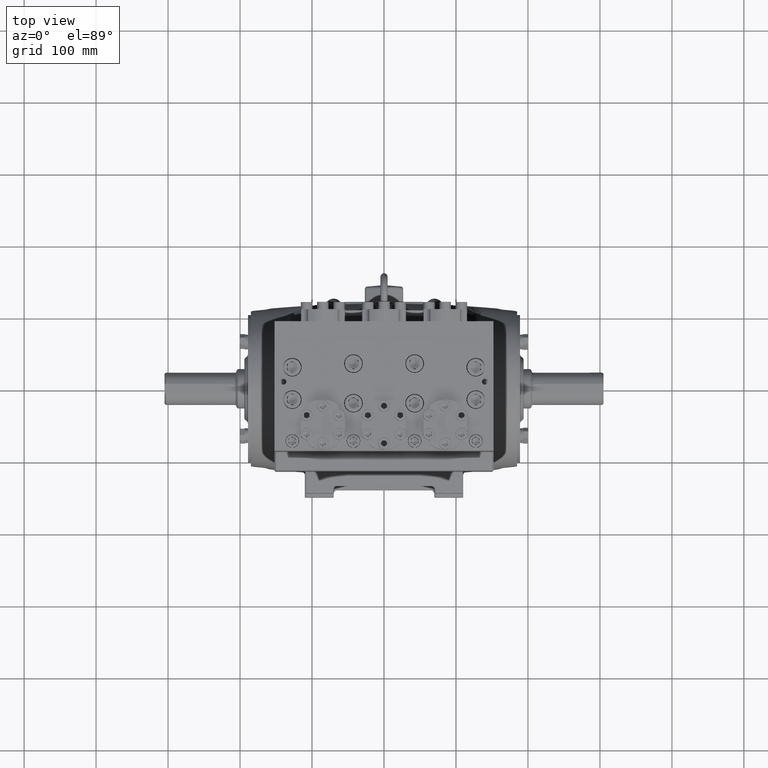
[diagram: clean part render]
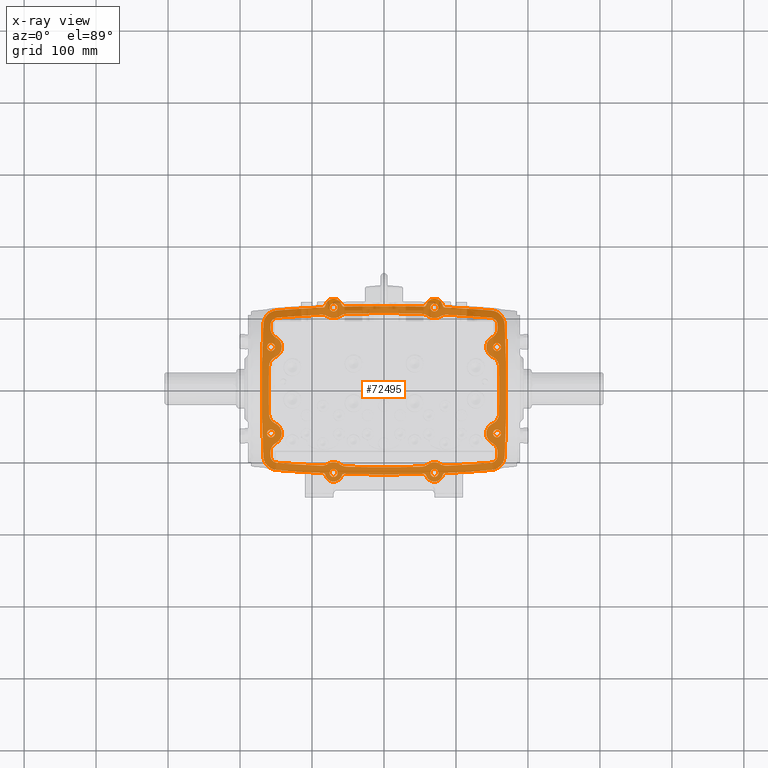
[diagram: x-ray — body ghosted, one internal face saturated and labeled with its STEP entity id]
A machine part, top view, then the same camera in x-ray: the body is ghosted and one INTERNAL B-rep face — a face not visible from any outside direction — is saturated and labeled: STEP entity #72495.
In plain terms, the highlighted planar face has unit normal (-0, 0, -1).
Its self-contained STEP definition (entity closure, byte-faithful):
#80 = AXIS2_PLACEMENT_3D ( 'NONE', #66190, #10265, #72650 ) ;
#234 = VERTEX_POINT ( 'NONE', #65702 ) ;
#250 = EDGE_CURVE ( 'NONE', #31376, #72010, #33612, .T. ) ;
#262 = ORIENTED_EDGE ( 'NONE', *, *, #57354, .F. ) ;
#326 = EDGE_LOOP ( 'NONE', ( #53525, #13022 ) ) ;
#356 = ORIENTED_EDGE ( 'NONE', *, *, #21249, .T. ) ;
#502 = ORIENTED_EDGE ( 'NONE', *, *, #59012, .T. ) ;
#505 = EDGE_CURVE ( 'NONE', #1195, #18193, #76324, .T. ) ;
#762 = CARTESIAN_POINT ( 'NONE',  ( -2.301842638728269996, -4.658047957668205896, -4.572834645669291653 ) ) ;
#937 = CARTESIAN_POINT ( 'NONE',  ( -3.402497408455763317, 3.539165555949416841, -4.572834645669291653 ) ) ;
#1137 = DIRECTION ( 'NONE',  ( -1.000000000000000000, 0.000000000000000000, 0.000000000000000000 ) ) ;
#1195 = VERTEX_POINT ( 'NONE', #65323 ) ;
#1319 = AXIS2_PLACEMENT_3D ( 'NONE', #62207, #2224, #57326 ) ;
#1520 = EDGE_CURVE ( 'NONE', #34459, #55925, #58188, .T. ) ;
#1819 = AXIS2_PLACEMENT_3D ( 'NONE', #61209, #74526, #19048 ) ;
#2039 = CARTESIAN_POINT ( 'NONE',  ( -2.755905511811023612, 4.527559055118110187, -4.572834645669291653 ) ) ;
#2124 = CIRCLE ( 'NONE', #8611, 0.5905511811023627100 ) ;
#2144 = CARTESIAN_POINT ( 'NONE',  ( 5.879475132747619348, -4.361980001285704844, -4.572834645669291653 ) ) ;
#2178 = CARTESIAN_POINT ( 'NONE',  ( -2.184685777494969727, 4.572616085630212268, -4.572834645669291653 ) ) ;
#2207 = CIRCLE ( 'NONE', #15115, 70.47244094488188182 ) ;
#2224 = DIRECTION ( 'NONE',  ( -0.000000000000000000, -0.000000000000000000, -1.000000000000000000 ) ) ;
#2263 = DIRECTION ( 'NONE',  ( -0.000000000000000000, -0.000000000000000000, -1.000000000000000000 ) ) ;
#2608 = ORIENTED_EDGE ( 'NONE', *, *, #74505, .F. ) ;
#2713 = CIRCLE ( 'NONE', #16956, 0.5905511811023624880 ) ;
#3069 = CIRCLE ( 'NONE', #8263, 0.4724409448818899238 ) ;
#3221 = AXIS2_PLACEMENT_3D ( 'NONE', #3817, #8308, #33013 ) ;
#3319 = DIRECTION ( 'NONE',  ( 1.000000000000000000, 0.000000000000000000, 0.000000000000000000 ) ) ;
#3378 = DIRECTION ( 'NONE',  ( 0.000000000000000000, 0.000000000000000000, 1.000000000000000000 ) ) ;
#3817 = CARTESIAN_POINT ( 'NONE',  ( 0.000000000000000000, -66.25984251968503713, -4.572834645669291653 ) ) ;
#3958 = DIRECTION ( 'NONE',  ( 1.000000000000000000, 0.000000000000000000, 0.000000000000000000 ) ) ;
#4151 = DIRECTION ( 'NONE',  ( 1.000000000000000000, 0.000000000000000000, 0.000000000000000000 ) ) ;
#4277 = CIRCLE ( 'NONE', #56002, 0.2165354330708663400 ) ;
#4456 = ORIENTED_EDGE ( 'NONE', *, *, #29611, .T. ) ;
#4474 = ORIENTED_EDGE ( 'NONE', *, *, #48963, .F. ) ;
#4555 = AXIS2_PLACEMENT_3D ( 'NONE', #17180, #23641, #48365 ) ;
#4658 = CARTESIAN_POINT ( 'NONE',  ( -6.600522642258387584, -3.617487388704948792, -4.572834645669291653 ) ) ;
#4685 = CARTESIAN_POINT ( 'NONE',  ( -5.814147631272645000, 3.577293084386023114, -4.572834645669291653 ) ) ;
#5069 = DIRECTION ( 'NONE',  ( -1.000000000000000000, 0.000000000000000000, 0.000000000000000000 ) ) ;
#5118 = CARTESIAN_POINT ( 'NONE',  ( -5.879475132747619348, -4.361980001285704844, -4.572834645669291653 ) ) ;
#5189 = EDGE_CURVE ( 'NONE', #28238, #23685, #60413, .T. ) ;
#5301 = VERTEX_POINT ( 'NONE', #16034 ) ;
#5304 = DIRECTION ( 'NONE',  ( -0.000000000000000000, -0.000000000000000000, -1.000000000000000000 ) ) ;
#5396 = VERTEX_POINT ( 'NONE', #60979 ) ;
#5871 = DIRECTION ( 'NONE',  ( 1.000000000000000000, 0.000000000000000000, 0.000000000000000000 ) ) ;
#5926 = EDGE_CURVE ( 'NONE', #5396, #19039, #17802, .T. ) ;
#6451 = EDGE_CURVE ( 'NONE', #35676, #21496, #60583, .T. ) ;
#6599 = EDGE_CURVE ( 'NONE', #74263, #47690, #73473, .T. ) ;
#6635 = DIRECTION ( 'NONE',  ( 1.000000000000000000, 0.000000000000000000, 0.000000000000000000 ) ) ;
#6667 = ORIENTED_EDGE ( 'NONE', *, *, #67043, .T. ) ;
#6691 = DIRECTION ( 'NONE',  ( -1.000000000000000000, 0.000000000000000000, 0.000000000000000000 ) ) ;
#6707 = CARTESIAN_POINT ( 'NONE',  ( -3.079201460133393020, -4.033362305533763958, -4.572834645669291653 ) ) ;
#6875 = DIRECTION ( 'NONE',  ( -0.000000000000000000, -0.000000000000000000, -1.000000000000000000 ) ) ;
#6988 = VERTEX_POINT ( 'NONE', #24361 ) ;
#7069 = DIRECTION ( 'NONE',  ( 0.000000000000000000, 0.000000000000000000, 1.000000000000000000 ) ) ;
#7133 = DIRECTION ( 'NONE',  ( 1.000000000000000000, 0.000000000000000000, 0.000000000000000000 ) ) ;
#7506 = DIRECTION ( 'NONE',  ( 1.000000000000000000, 0.000000000000000000, 0.000000000000000000 ) ) ;
#7570 = VERTEX_POINT ( 'NONE', #11904 ) ;
#7670 = ORIENTED_EDGE ( 'NONE', *, *, #40569, .T. ) ;
#7870 = DIRECTION ( 'NONE',  ( 1.000000000000000000, 0.000000000000000000, 0.000000000000000000 ) ) ;
#8012 = CARTESIAN_POINT ( 'NONE',  ( -5.964566929133858331, 2.362204724409448620, -4.572834645669291653 ) ) ;
#8032 = VERTEX_POINT ( 'NONE', #75340 ) ;
#8239 = CIRCLE ( 'NONE', #41908, 0.3937007874015860942 ) ;
#8263 = AXIS2_PLACEMENT_3D ( 'NONE', #49847, #6875, #55534 ) ;
#8308 = DIRECTION ( 'NONE',  ( -0.000000000000000000, -0.000000000000000000, -1.000000000000000000 ) ) ;
#8369 = ORIENTED_EDGE ( 'NONE', *, *, #48036, .T. ) ;
#8461 = EDGE_LOOP ( 'NONE', ( #71669, #40114 ) ) ;
#8499 = EDGE_LOOP ( 'NONE', ( #6667, #13788 ) ) ;
#8560 = VERTEX_POINT ( 'NONE', #47302 ) ;
#8611 = AXIS2_PLACEMENT_3D ( 'NONE', #74638, #49176, #68176 ) ;
#8663 = CARTESIAN_POINT ( 'NONE',  ( 6.181102362204724976, 2.362204724409448620, -4.572834645669291653 ) ) ;
#8687 = DIRECTION ( 'NONE',  ( 0.000000000000000000, 0.000000000000000000, 1.000000000000000000 ) ) ;
#8812 = VERTEX_POINT ( 'NONE', #2144 ) ;
#8872 = VERTEX_POINT ( 'NONE', #47500 ) ;
#9469 = ORIENTED_EDGE ( 'NONE', *, *, #63641, .T. ) ;
#9952 = ORIENTED_EDGE ( 'NONE', *, *, #11418, .F. ) ;
#10209 = DIRECTION ( 'NONE',  ( 0.000000000000000000, 0.000000000000000000, 1.000000000000000000 ) ) ;
#10265 = DIRECTION ( 'NONE',  ( -0.000000000000000000, -0.000000000000000000, -1.000000000000000000 ) ) ;
#10369 = DIRECTION ( 'NONE',  ( 0.000000000000000000, 0.000000000000000000, 1.000000000000000000 ) ) ;
#10393 = CIRCLE ( 'NONE', #41446, 0.2165354330708663400 ) ;
#10470 = VERTEX_POINT ( 'NONE', #22602 ) ;
#10673 = AXIS2_PLACEMENT_3D ( 'NONE', #63854, #2263, #64659 ) ;
#11023 = CIRCLE ( 'NONE', #56295, 0.1181102362204725503 ) ;
#11191 = CARTESIAN_POINT ( 'NONE',  ( -2.051618992759706384, 4.182728360702427040, -4.572834645669291653 ) ) ;
#11197 = CIRCLE ( 'NONE', #33218, 0.2165354330708663400 ) ;
#11216 = CIRCLE ( 'NONE', #78489, 0.2165354330708663400 ) ;
#11418 = EDGE_CURVE ( 'NONE', #14865, #5301, #65721, .T. ) ;
#11760 = DIRECTION ( 'NONE',  ( 1.000000000000000000, 0.000000000000000000, 0.000000000000000000 ) ) ;
#11777 = CARTESIAN_POINT ( 'NONE',  ( 3.431250907682149798, 4.129016328419567117, -4.572834645669291653 ) ) ;
#11904 = CARTESIAN_POINT ( 'NONE',  ( 2.184685777494969727, -4.572616085630212268, -4.572834645669291653 ) ) ;
#11929 = CARTESIAN_POINT ( 'NONE',  ( 2.034426654831557268, 3.592427487403074604, -4.572834645669291653 ) ) ;
#11949 = DIRECTION ( 'NONE',  ( -0.000000000000000000, 0.000000000000000000, 1.000000000000000000 ) ) ;
#12019 = CARTESIAN_POINT ( 'NONE',  ( -6.287298468513237815, -1.295798474597251726, -4.572834645669291653 ) ) ;
#12271 = CARTESIAN_POINT ( 'NONE',  ( 5.879475132747624677, 4.361980001285700403, -4.572834645669291653 ) ) ;
#12582 = CARTESIAN_POINT ( 'NONE',  ( -6.397637795275591621, -2.362204724409448620, -4.572834645669291653 ) ) ;
#12841 = CIRCLE ( 'NONE', #18061, 0.2165354330708663400 ) ;
#13022 = ORIENTED_EDGE ( 'NONE', *, *, #63076, .F. ) ;
#13218 = CIRCLE ( 'NONE', #63833, 70.47244094488191024 ) ;
#13369 = ORIENTED_EDGE ( 'NONE', *, *, #49512, .T. ) ;
#13512 = DIRECTION ( 'NONE',  ( 1.000000000000000000, 0.000000000000000000, 0.000000000000000000 ) ) ;
#13559 = AXIS2_PLACEMENT_3D ( 'NONE', #67806, #74647, #25643 ) ;
#13654 = ORIENTED_EDGE ( 'NONE', *, *, #34412, .F. ) ;
#13691 = DIRECTION ( 'NONE',  ( -1.000000000000000000, 0.000000000000000000, 0.000000000000000000 ) ) ;
#13762 = CARTESIAN_POINT ( 'NONE',  ( -64.17322834645671037, 0.000000000000000000, -4.572834645669291653 ) ) ;
#13788 = ORIENTED_EDGE ( 'NONE', *, *, #23200, .T. ) ;
#13903 = DIRECTION ( 'NONE',  ( 0.000000000000000000, 0.000000000000000000, 1.000000000000000000 ) ) ;
#13942 = CIRCLE ( 'NONE', #43676, 0.5905511811023621549 ) ;
#14009 = DIRECTION ( 'NONE',  ( -0.000000000000000000, -0.000000000000000000, -1.000000000000000000 ) ) ;
#14116 = DIRECTION ( 'NONE',  ( 1.000000000000000000, 0.000000000000000000, 0.000000000000000000 ) ) ;
#14226 = VERTEX_POINT ( 'NONE', #34882 ) ;
#14565 = FACE_OUTER_BOUND ( 'NONE', #50516, .T. ) ;
#14637 = CIRCLE ( 'NONE', #72820, 0.2165354330708663400 ) ;
#14640 = DIRECTION ( 'NONE',  ( -1.000000000000000000, 0.000000000000000000, 0.000000000000000000 ) ) ;
#14688 = CIRCLE ( 'NONE', #18633, 0.2165354330708663400 ) ;
#14761 = VERTEX_POINT ( 'NONE', #75218 ) ;
#14817 = CARTESIAN_POINT ( 'NONE',  ( -64.17322834645671037, 0.000000000000000000, -4.572834645669291653 ) ) ;
#14865 = VERTEX_POINT ( 'NONE', #76029 ) ;
#14936 = VERTEX_POINT ( 'NONE', #11191 ) ;
#14943 = AXIS2_PLACEMENT_3D ( 'NONE', #69387, #13903, #63331 ) ;
#15115 = AXIS2_PLACEMENT_3D ( 'NONE', #29187, #34852, #28393 ) ;
#15473 = DIRECTION ( 'NONE',  ( 0.000000000000000000, 0.000000000000000000, 1.000000000000000000 ) ) ;
#15476 = VERTEX_POINT ( 'NONE', #40724 ) ;
#15518 = AXIS2_PLACEMENT_3D ( 'NONE', #59617, #5304, #47461 ) ;
#15600 = DIRECTION ( 'NONE',  ( -1.000000000000000000, 0.000000000000000000, 0.000000000000000000 ) ) ;
#15659 = DIRECTION ( 'NONE',  ( 1.000000000000000000, 0.000000000000000000, 0.000000000000000000 ) ) ;
#15792 = DIRECTION ( 'NONE',  ( -0.000000000000000000, -0.000000000000000000, -1.000000000000000000 ) ) ;
#15824 = CARTESIAN_POINT ( 'NONE',  ( 2.972440944881889813, -4.527559055118110187, -4.572834645669291653 ) ) ;
#15874 = VERTEX_POINT ( 'NONE', #76581 ) ;
#15890 = CIRCLE ( 'NONE', #63716, 0.2165354330708663400 ) ;
#16034 = CARTESIAN_POINT ( 'NONE',  ( 5.846811382010137059, 3.969636542835852655, -4.572834645669291653 ) ) ;
#16248 = EDGE_CURVE ( 'NONE', #47189, #1195, #63621, .T. ) ;
#16365 = EDGE_CURVE ( 'NONE', #55925, #34459, #72699, .T. ) ;
#16591 = VERTEX_POINT ( 'NONE', #79893 ) ;
#16956 = AXIS2_PLACEMENT_3D ( 'NONE', #63926, #51769, #44873 ) ;
#17004 = CARTESIAN_POINT ( 'NONE',  ( -5.879475132747624677, 4.361980001285700403, -4.572834645669291653 ) ) ;
#17180 = CARTESIAN_POINT ( 'NONE',  ( 0.000000000000000000, -66.25984251968503713, -4.572834645669291653 ) ) ;
#17240 = DIRECTION ( 'NONE',  ( 1.000000000000000000, 0.000000000000000000, 0.000000000000000000 ) ) ;
#17358 = CIRCLE ( 'NONE', #1819, 0.5905511811023611557 ) ;
#17363 = ORIENTED_EDGE ( 'NONE', *, *, #63398, .T. ) ;
#17415 = DIRECTION ( 'NONE',  ( -1.000000000000000000, 0.000000000000000000, 0.000000000000000000 ) ) ;
#17427 = CIRCLE ( 'NONE', #60096, 0.5905511811023627100 ) ;
#17641 = DIRECTION ( 'NONE',  ( 0.000000000000000000, 0.000000000000000000, 1.000000000000000000 ) ) ;
#17679 = CARTESIAN_POINT ( 'NONE',  ( -2.395166083321290884, -4.059993271260593062, -4.572834645669291653 ) ) ;
#17680 = CARTESIAN_POINT ( 'NONE',  ( 5.814147631272645000, 3.577293084386023114, -4.572834645669291653 ) ) ;
#17802 = CIRCLE ( 'NONE', #64404, 70.47244094488188182 ) ;
#17989 = DIRECTION ( 'NONE',  ( -0.000000000000000000, -0.000000000000000000, -1.000000000000000000 ) ) ;
#18061 = AXIS2_PLACEMENT_3D ( 'NONE', #25720, #50043, #38256 ) ;
#18193 = VERTEX_POINT ( 'NONE', #56965 ) ;
#18294 = EDGE_CURVE ( 'NONE', #35676, #45663, #71414, .T. ) ;
#18407 = DIRECTION ( 'NONE',  ( -0.000000000000000000, -0.000000000000000000, -1.000000000000000000 ) ) ;
#18566 = CIRCLE ( 'NONE', #63839, 0.4724409448818899238 ) ;
#18633 = AXIS2_PLACEMENT_3D ( 'NONE', #37735, #63271, #74602 ) ;
#18638 = CIRCLE ( 'NONE', #62569, 0.7874015748031557571 ) ;
#18762 = VERTEX_POINT ( 'NONE', #79550 ) ;
#18879 = CARTESIAN_POINT ( 'NONE',  ( -3.334447447247841367, 4.646049250672071196, -4.572834645669291653 ) ) ;
#19039 = VERTEX_POINT ( 'NONE', #64538 ) ;
#19048 = DIRECTION ( 'NONE',  ( -1.000000000000000000, 0.000000000000000000, 0.000000000000000000 ) ) ;
#19106 = CIRCLE ( 'NONE', #24317, 0.5905511811023621549 ) ;
#19398 = ORIENTED_EDGE ( 'NONE', *, *, #24514, .F. ) ;
#19567 = DIRECTION ( 'NONE',  ( -0.000000000000000000, -0.000000000000000000, -1.000000000000000000 ) ) ;
#19822 = AXIS2_PLACEMENT_3D ( 'NONE', #80139, #48992, #50166 ) ;
#19886 = CIRCLE ( 'NONE', #36651, 70.86614173228346658 ) ;
#19916 = EDGE_CURVE ( 'NONE', #8812, #72010, #19886, .T. ) ;
#19998 = DIRECTION ( 'NONE',  ( -0.000000000000000000, -0.000000000000000000, -1.000000000000000000 ) ) ;
#20104 = AXIS2_PLACEMENT_3D ( 'NONE', #51177, #37406, #68205 ) ;
#20474 = CARTESIAN_POINT ( 'NONE',  ( -2.972440944881889813, -4.527559055118110187, -4.572834645669291653 ) ) ;
#20671 = ORIENTED_EDGE ( 'NONE', *, *, #33256, .T. ) ;
#20954 = ORIENTED_EDGE ( 'NONE', *, *, #16248, .F. ) ;
#21090 = DIRECTION ( 'NONE',  ( 0.000000000000000000, 0.000000000000000000, 1.000000000000000000 ) ) ;
#21153 = ORIENTED_EDGE ( 'NONE', *, *, #16365, .T. ) ;
#21169 = CARTESIAN_POINT ( 'NONE',  ( 3.218739060160481280, 4.622351211561261941, -4.572834645669291653 ) ) ;
#21249 = EDGE_CURVE ( 'NONE', #21989, #15476, #58808, .T. ) ;
#21276 = DIRECTION ( 'NONE',  ( -0.000000000000000000, 0.000000000000000000, 1.000000000000000000 ) ) ;
#21311 = EDGE_CURVE ( 'NONE', #65888, #29104, #17427, .T. ) ;
#21408 = VERTEX_POINT ( 'NONE', #67403 ) ;
#21496 = VERTEX_POINT ( 'NONE', #21169 ) ;
#21635 = ORIENTED_EDGE ( 'NONE', *, *, #39671, .T. ) ;
#21770 = EDGE_LOOP ( 'NONE', ( #36676, #55568 ) ) ;
#21989 = VERTEX_POINT ( 'NONE', #25833 ) ;
#22037 = CARTESIAN_POINT ( 'NONE',  ( 2.539370078740156966, 4.527559055118110187, -4.572834645669291653 ) ) ;
#22040 = CIRCLE ( 'NONE', #73788, 0.1181102362204725503 ) ;
#22115 = CARTESIAN_POINT ( 'NONE',  ( 2.972440944881889813, 4.527559055118110187, -4.572834645669291653 ) ) ;
#22345 = CARTESIAN_POINT ( 'NONE',  ( 6.600522642258387584, -3.617487388704948792, -4.572834645669291653 ) ) ;
#22602 = CARTESIAN_POINT ( 'NONE',  ( 6.215528999314398284, 3.433332498902712970, -4.572834645669291653 ) ) ;
#22672 = CIRCLE ( 'NONE', #29129, 0.4724409448818899238 ) ;
#23196 = DIRECTION ( 'NONE',  ( -0.000000000000000000, 0.000000000000000000, 1.000000000000000000 ) ) ;
#23200 = EDGE_CURVE ( 'NONE', #67256, #8872, #32528, .T. ) ;
#23201 = VERTEX_POINT ( 'NONE', #74761 ) ;
#23268 = AXIS2_PLACEMENT_3D ( 'NONE', #63209, #74934, #49477 ) ;
#23371 = EDGE_CURVE ( 'NONE', #29928, #67867, #45497, .T. ) ;
#23486 = DIRECTION ( 'NONE',  ( 1.000000000000000000, 0.000000000000000000, 0.000000000000000000 ) ) ;
#23637 = ORIENTED_EDGE ( 'NONE', *, *, #67395, .T. ) ;
#23641 = DIRECTION ( 'NONE',  ( -0.000000000000000000, 0.000000000000000000, 1.000000000000000000 ) ) ;
#23685 = VERTEX_POINT ( 'NONE', #53196 ) ;
#24165 = CARTESIAN_POINT ( 'NONE',  ( 2.539370078740156966, -4.527559055118110187, -4.572834645669291653 ) ) ;
#24317 = AXIS2_PLACEMENT_3D ( 'NONE', #53200, #28873, #54391 ) ;
#24361 = CARTESIAN_POINT ( 'NONE',  ( -6.287298468513236038, 1.295798474597255501, -4.572834645669291653 ) ) ;
#24444 = ORIENTED_EDGE ( 'NONE', *, *, #73559, .F. ) ;
#24514 = EDGE_CURVE ( 'NONE', #69266, #60939, #15890, .T. ) ;
#24543 = VERTEX_POINT ( 'NONE', #48199 ) ;
#24829 = AXIS2_PLACEMENT_3D ( 'NONE', #67462, #11949, #5069 ) ;
#24910 = AXIS2_PLACEMENT_3D ( 'NONE', #72323, #29766, #17240 ) ;
#25006 = CARTESIAN_POINT ( 'NONE',  ( -2.539370078740156966, -4.527559055118110187, -4.572834645669291653 ) ) ;
#25028 = CIRCLE ( 'NONE', #53495, 70.47244094488188182 ) ;
#25088 = CIRCLE ( 'NONE', #70348, 70.86614173228346658 ) ;
#25118 = EDGE_CURVE ( 'NONE', #23201, #234, #53429, .T. ) ;
#25328 = CARTESIAN_POINT ( 'NONE',  ( 3.334447447247962604, 4.646049250672073860, -4.572834645669291653 ) ) ;
#25409 = AXIS2_PLACEMENT_3D ( 'NONE', #77295, #71649, #72849 ) ;
#25419 = EDGE_LOOP ( 'NONE', ( #43319, #61715, #31624, #43731, #48453, #36377, #356, #49772, #65645, #70378, #55538, #51801, #61986, #28404, #7670, #502, #61796, #39555, #77899, #8369, #49652, #79193, #44963, #41787, #13654, #4474, #9952, #42758, #24444, #44257, #20954, #32181, #57913, #69463, #61390, #53177, #59728, #2608, #38268, #51197 ) ) ;
#25473 = EDGE_CURVE ( 'NONE', #15476, #29928, #13218, .T. ) ;
#25520 = FACE_BOUND ( 'NONE', #25419, .T. ) ;
#25643 = DIRECTION ( 'NONE',  ( 1.000000000000000000, 0.000000000000000000, 0.000000000000000000 ) ) ;
#25690 = DIRECTION ( 'NONE',  ( -1.000000000000000000, 0.000000000000000000, 0.000000000000000000 ) ) ;
#25720 = CARTESIAN_POINT ( 'NONE',  ( 2.755905511811023612, -4.527559055118110187, -4.572834645669291653 ) ) ;
#25754 = EDGE_CURVE ( 'NONE', #14936, #234, #25028, .T. ) ;
#25833 = CARTESIAN_POINT ( 'NONE',  ( -5.846811382010123737, -3.969636542835872195, -4.572834645669291653 ) ) ;
#25937 = CARTESIAN_POINT ( 'NONE',  ( -3.218739060160481280, -4.622351211561261941, -4.572834645669291653 ) ) ;
#26101 = EDGE_CURVE ( 'NONE', #8032, #47769, #48215, .T. ) ;
#26212 = VERTEX_POINT ( 'NONE', #4658 ) ;
#26273 = CARTESIAN_POINT ( 'NONE',  ( 5.814147631272645000, 3.577293084386023114, -4.572834645669291653 ) ) ;
#26295 = EDGE_CURVE ( 'NONE', #60939, #69266, #50745, .T. ) ;
#26318 = FACE_BOUND ( 'NONE', #52923, .T. ) ;
#26416 = AXIS2_PLACEMENT_3D ( 'NONE', #47785, #72090, #40499 ) ;
#26498 = DIRECTION ( 'NONE',  ( 1.000000000000000000, 0.000000000000000000, 0.000000000000000000 ) ) ;
#26588 = AXIS2_PLACEMENT_3D ( 'NONE', #76517, #27121, #70466 ) ;
#26668 = DIRECTION ( 'NONE',  ( -0.000000000000000000, 0.000000000000000000, 1.000000000000000000 ) ) ;
#26790 = AXIS2_PLACEMENT_3D ( 'NONE', #70132, #45030, #14640 ) ;
#27017 = VERTEX_POINT ( 'NONE', #51780 ) ;
#27121 = DIRECTION ( 'NONE',  ( -0.000000000000000000, 0.000000000000000000, -1.000000000000000000 ) ) ;
#27354 = DIRECTION ( 'NONE',  ( -0.000000000000000000, -0.000000000000000000, -1.000000000000000000 ) ) ;
#27687 = ORIENTED_EDGE ( 'NONE', *, *, #47922, .T. ) ;
#27691 = AXIS2_PLACEMENT_3D ( 'NONE', #52824, #3378, #60499 ) ;
#27743 = CARTESIAN_POINT ( 'NONE',  ( -2.539370078740156966, 4.527559055118110187, -4.572834645669291653 ) ) ;
#27745 = CARTESIAN_POINT ( 'NONE',  ( 2.301842638728269996, 4.658047957668205896, -4.572834645669291653 ) ) ;
#27895 = DIRECTION ( 'NONE',  ( 1.000000000000000000, 0.000000000000000000, 0.000000000000000000 ) ) ;
#27931 = CARTESIAN_POINT ( 'NONE',  ( 5.814147631272645000, -3.577293084386023114, -4.572834645669291653 ) ) ;
#27997 = CARTESIAN_POINT ( 'NONE',  ( 6.397637795275591621, -2.362204724409448620, -4.572834645669291653 ) ) ;
#28021 = CIRCLE ( 'NONE', #43506, 0.5905511811023627100 ) ;
#28100 = VERTEX_POINT ( 'NONE', #29432 ) ;
#28108 = VERTEX_POINT ( 'NONE', #5118 ) ;
#28238 = VERTEX_POINT ( 'NONE', #27745 ) ;
#28312 = CARTESIAN_POINT ( 'NONE',  ( 6.287298468513237815, -1.295798474597251726, -4.572834645669291653 ) ) ;
#28330 = DIRECTION ( 'NONE',  ( -0.000000000000000000, 0.000000000000000000, 1.000000000000000000 ) ) ;
#28393 = DIRECTION ( 'NONE',  ( 1.000000000000000000, 0.000000000000000000, 0.000000000000000000 ) ) ;
#28404 = ORIENTED_EDGE ( 'NONE', *, *, #32308, .T. ) ;
#28410 = DIRECTION ( 'NONE',  ( -0.000000000000000000, -0.000000000000000000, -1.000000000000000000 ) ) ;
#28434 = ORIENTED_EDGE ( 'NONE', *, *, #6451, .T. ) ;
#28583 = CARTESIAN_POINT ( 'NONE',  ( 2.188326920457581259, 4.690670183305729601, -4.572834645669291653 ) ) ;
#28598 = EDGE_CURVE ( 'NONE', #19039, #73011, #44549, .T. ) ;
#28873 = DIRECTION ( 'NONE',  ( -0.000000000000000000, 0.000000000000000000, 1.000000000000000000 ) ) ;
#28925 = DIRECTION ( 'NONE',  ( 1.000000000000000000, 0.000000000000000000, 0.000000000000000000 ) ) ;
#28944 = CARTESIAN_POINT ( 'NONE',  ( 0.000000000000000000, 66.25984251968503713, -4.572834645669291653 ) ) ;
#28956 = VERTEX_POINT ( 'NONE', #762 ) ;
#29104 = VERTEX_POINT ( 'NONE', #12019 ) ;
#29129 = AXIS2_PLACEMENT_3D ( 'NONE', #47462, #15473, #71770 ) ;
#29187 = CARTESIAN_POINT ( 'NONE',  ( 0.000000000000000000, 66.25984251968503713, -4.572834645669291653 ) ) ;
#29191 = CARTESIAN_POINT ( 'NONE',  ( 2.755905511811023612, 4.527559055118110187, -4.572834645669291653 ) ) ;
#29197 = AXIS2_PLACEMENT_3D ( 'NONE', #13762, #62387, #69653 ) ;
#29216 = ORIENTED_EDGE ( 'NONE', *, *, #250, .T. ) ;
#29266 = CARTESIAN_POINT ( 'NONE',  ( 3.402497408455763317, -3.539165555949416841, -4.572834645669291653 ) ) ;
#29432 = CARTESIAN_POINT ( 'NONE',  ( -3.328899281778211261, 4.528069397476806479, -4.572834645669291653 ) ) ;
#29549 = EDGE_CURVE ( 'NONE', #7570, #56216, #11023, .T. ) ;
#29611 = EDGE_CURVE ( 'NONE', #28956, #60519, #34316, .T. ) ;
#29694 = EDGE_CURVE ( 'NONE', #26212, #28108, #30509, .T. ) ;
#29726 = ORIENTED_EDGE ( 'NONE', *, *, #74219, .T. ) ;
#29734 = DIRECTION ( 'NONE',  ( -0.000000000000000000, 0.000000000000000000, 1.000000000000000000 ) ) ;
#29766 = DIRECTION ( 'NONE',  ( 0.000000000000000000, 0.000000000000000000, 1.000000000000000000 ) ) ;
#29928 = VERTEX_POINT ( 'NONE', #51484 ) ;
#30086 = CARTESIAN_POINT ( 'NONE',  ( 6.181102362204725864, -2.362204724409448620, -4.572834645669291653 ) ) ;
#30213 = DIRECTION ( 'NONE',  ( 0.000000000000000000, 0.000000000000000000, 1.000000000000000000 ) ) ;
#30431 = DIRECTION ( 'NONE',  ( -0.000000000000000000, -0.000000000000000000, -1.000000000000000000 ) ) ;
#30509 = CIRCLE ( 'NONE', #14943, 0.7874015748031557571 ) ;
#30609 = CIRCLE ( 'NONE', #72017, 0.2165354330708663400 ) ;
#30620 = CARTESIAN_POINT ( 'NONE',  ( 6.287298468513236038, 1.295798474597255501, -4.572834645669291653 ) ) ;
#31134 = EDGE_CURVE ( 'NONE', #48855, #32659, #28021, .T. ) ;
#31210 = CARTESIAN_POINT ( 'NONE',  ( 0.000000000000000000, 66.25984251968503713, -4.572834645669291653 ) ) ;
#31344 = EDGE_CURVE ( 'NONE', #55359, #15874, #79754, .T. ) ;
#31376 = VERTEX_POINT ( 'NONE', #63268 ) ;
#31526 = EDGE_CURVE ( 'NONE', #47690, #21989, #2207, .T. ) ;
#31624 = ORIENTED_EDGE ( 'NONE', *, *, #28598, .T. ) ;
#31867 = CARTESIAN_POINT ( 'NONE',  ( -5.903390719813591758, -2.883383140291965852, -4.572834645669291653 ) ) ;
#32074 = VERTEX_POINT ( 'NONE', #76399 ) ;
#32181 = ORIENTED_EDGE ( 'NONE', *, *, #56939, .F. ) ;
#32308 = EDGE_CURVE ( 'NONE', #32074, #27017, #43621, .T. ) ;
#32528 = CIRCLE ( 'NONE', #51985, 0.2165354330708663400 ) ;
#32659 = VERTEX_POINT ( 'NONE', #28312 ) ;
#32881 = AXIS2_PLACEMENT_3D ( 'NONE', #63370, #39033, #26498 ) ;
#32921 = DIRECTION ( 'NONE',  ( 0.000000000000000000, 0.000000000000000000, 1.000000000000000000 ) ) ;
#32989 = VERTEX_POINT ( 'NONE', #78005 ) ;
#33013 = DIRECTION ( 'NONE',  ( 1.000000000000000000, 0.000000000000000000, 0.000000000000000000 ) ) ;
#33047 = DIRECTION ( 'NONE',  ( -0.000000000000000000, -0.000000000000000000, -1.000000000000000000 ) ) ;
#33104 = ORIENTED_EDGE ( 'NONE', *, *, #29694, .T. ) ;
#33189 = FACE_BOUND ( 'NONE', #326, .T. ) ;
#33195 = CARTESIAN_POINT ( 'NONE',  ( 6.181102362204724976, 2.362204724409448620, -4.572834645669291653 ) ) ;
#33218 = AXIS2_PLACEMENT_3D ( 'NONE', #48244, #78192, #66876 ) ;
#33256 = EDGE_CURVE ( 'NONE', #51658, #57205, #30609, .T. ) ;
#33292 = CIRCLE ( 'NONE', #66918, 70.47244094488188182 ) ;
#33612 = CIRCLE ( 'NONE', #15518, 0.1181102362204725503 ) ;
#33916 = CARTESIAN_POINT ( 'NONE',  ( 5.625679077422456764, -3.404561556174485748, -4.572834645669291653 ) ) ;
#34148 = DIRECTION ( 'NONE',  ( 0.000000000000000000, 0.000000000000000000, 1.000000000000000000 ) ) ;
#34316 = CIRCLE ( 'NONE', #20104, 0.1181102362204725503 ) ;
#34380 = EDGE_CURVE ( 'NONE', #15874, #39902, #13942, .T. ) ;
#34412 = EDGE_CURVE ( 'NONE', #59643, #24543, #19106, .T. ) ;
#34447 = CIRCLE ( 'NONE', #59038, 0.5905511811023583801 ) ;
#34459 = VERTEX_POINT ( 'NONE', #78666 ) ;
#34600 = DIRECTION ( 'NONE',  ( -1.000000000000000000, 0.000000000000000000, 0.000000000000000000 ) ) ;
#34852 = DIRECTION ( 'NONE',  ( -0.000000000000000000, -0.000000000000000000, -1.000000000000000000 ) ) ;
#34882 = CARTESIAN_POINT ( 'NONE',  ( 6.215528999314393843, -3.433332498902720964, -4.572834645669291653 ) ) ;
#34967 = CIRCLE ( 'NONE', #80, 0.4724409448818899238 ) ;
#35068 = ORIENTED_EDGE ( 'NONE', *, *, #19916, .F. ) ;
#35218 = AXIS2_PLACEMENT_3D ( 'NONE', #60187, #17641, #5871 ) ;
#35610 = CIRCLE ( 'NONE', #29197, 70.47244094488191024 ) ;
#35676 = VERTEX_POINT ( 'NONE', #56288 ) ;
#36194 = DIRECTION ( 'NONE',  ( -1.000000000000000000, 0.000000000000000000, 0.000000000000000000 ) ) ;
#36249 = EDGE_CURVE ( 'NONE', #6988, #32074, #67311, .T. ) ;
#36275 = EDGE_CURVE ( 'NONE', #61713, #75511, #10393, .T. ) ;
#36292 = DIRECTION ( 'NONE',  ( -1.000000000000000000, 0.000000000000000000, 0.000000000000000000 ) ) ;
#36377 = ORIENTED_EDGE ( 'NONE', *, *, #31526, .T. ) ;
#36491 = ORIENTED_EDGE ( 'NONE', *, *, #29549, .T. ) ;
#36630 = DIRECTION ( 'NONE',  ( -0.000000000000000000, 0.000000000000000000, 1.000000000000000000 ) ) ;
#36651 = AXIS2_PLACEMENT_3D ( 'NONE', #70704, #14009, #7133 ) ;
#36676 = ORIENTED_EDGE ( 'NONE', *, *, #36275, .F. ) ;
#36759 = CIRCLE ( 'NONE', #32881, 70.86614173228346658 ) ;
#37242 = EDGE_LOOP ( 'NONE', ( #78842, #21153 ) ) ;
#37406 = DIRECTION ( 'NONE',  ( -0.000000000000000000, -0.000000000000000000, -1.000000000000000000 ) ) ;
#37485 = CARTESIAN_POINT ( 'NONE',  ( -6.181102362204725864, -2.362204724409448620, -4.572834645669291653 ) ) ;
#37588 = CARTESIAN_POINT ( 'NONE',  ( -64.17322834645671037, 0.000000000000000000, -4.572834645669291653 ) ) ;
#37735 = CARTESIAN_POINT ( 'NONE',  ( 2.755905511811023612, 4.527559055118110187, -4.572834645669291653 ) ) ;
#37739 = AXIS2_PLACEMENT_3D ( 'NONE', #8663, #57273, #25690 ) ;
#38125 = ORIENTED_EDGE ( 'NONE', *, *, #49363, .T. ) ;
#38238 = VERTEX_POINT ( 'NONE', #58163 ) ;
#38256 = DIRECTION ( 'NONE',  ( -1.000000000000000000, 0.000000000000000000, 0.000000000000000000 ) ) ;
#38268 = ORIENTED_EDGE ( 'NONE', *, *, #34380, .F. ) ;
#38608 = EDGE_CURVE ( 'NONE', #73011, #74263, #77411, .T. ) ;
#38826 = CARTESIAN_POINT ( 'NONE',  ( 0.000000000000000000, 66.25984251968503713, -4.572834645669291653 ) ) ;
#38865 = DIRECTION ( 'NONE',  ( -1.000000000000000000, 0.000000000000000000, 0.000000000000000000 ) ) ;
#39033 = DIRECTION ( 'NONE',  ( 0.000000000000000000, 0.000000000000000000, 1.000000000000000000 ) ) ;
#39305 = CIRCLE ( 'NONE', #53557, 70.86614173228348079 ) ;
#39467 = CARTESIAN_POINT ( 'NONE',  ( -2.755905511811023612, 4.527559055118110187, -4.572834645669291653 ) ) ;
#39470 = CIRCLE ( 'NONE', #4555, 70.47244094488188182 ) ;
#39555 = ORIENTED_EDGE ( 'NONE', *, *, #61043, .T. ) ;
#39635 = CIRCLE ( 'NONE', #25409, 70.86614173228346658 ) ;
#39671 = EDGE_CURVE ( 'NONE', #57205, #51658, #12841, .T. ) ;
#39798 = CARTESIAN_POINT ( 'NONE',  ( -6.181102362204724976, 2.362204724409448620, -4.572834645669291653 ) ) ;
#39902 = VERTEX_POINT ( 'NONE', #60126 ) ;
#40063 = EDGE_CURVE ( 'NONE', #32989, #62411, #53046, .T. ) ;
#40091 = ORIENTED_EDGE ( 'NONE', *, *, #59989, .T. ) ;
#40114 = ORIENTED_EDGE ( 'NONE', *, *, #41244, .F. ) ;
#40265 = CARTESIAN_POINT ( 'NONE',  ( 5.938974744346537271, -1.823572276285767568, -4.572834645669291653 ) ) ;
#40330 = DIRECTION ( 'NONE',  ( -1.000000000000000000, 0.000000000000000000, 0.000000000000000000 ) ) ;
#40340 = VERTEX_POINT ( 'NONE', #17004 ) ;
#40499 = DIRECTION ( 'NONE',  ( 1.000000000000000000, 0.000000000000000000, 0.000000000000000000 ) ) ;
#40569 = EDGE_CURVE ( 'NONE', #27017, #8560, #41404, .T. ) ;
#40578 = CIRCLE ( 'NONE', #75653, 70.47244094488191024 ) ;
#40724 = CARTESIAN_POINT ( 'NONE',  ( -6.207335136765529171, -3.597390236545476405, -4.572834645669291653 ) ) ;
#40845 = EDGE_CURVE ( 'NONE', #14761, #67666, #58241, .T. ) ;
#41019 = AXIS2_PLACEMENT_3D ( 'NONE', #28583, #65061, #40330 ) ;
#41033 = EDGE_CURVE ( 'NONE', #60991, #21408, #76302, .T. ) ;
#41182 = EDGE_LOOP ( 'NONE', ( #21635, #20671 ) ) ;
#41244 = EDGE_CURVE ( 'NONE', #21408, #60991, #55709, .T. ) ;
#41404 = CIRCLE ( 'NONE', #1319, 0.5905511811023627100 ) ;
#41446 = AXIS2_PLACEMENT_3D ( 'NONE', #39798, #10209, #47486 ) ;
#41787 = ORIENTED_EDGE ( 'NONE', *, *, #59691, .F. ) ;
#41799 = AXIS2_PLACEMENT_3D ( 'NONE', #33916, #45286, #1137 ) ;
#41908 = AXIS2_PLACEMENT_3D ( 'NONE', #27931, #28330, #53057 ) ;
#42038 = DIRECTION ( 'NONE',  ( -0.000000000000000000, 0.000000000000000000, 1.000000000000000000 ) ) ;
#42362 = CARTESIAN_POINT ( 'NONE',  ( 3.328899281778211261, -4.528069397476806479, -4.572834645669291653 ) ) ;
#42758 = ORIENTED_EDGE ( 'NONE', *, *, #72430, .F. ) ;
#42969 = AXIS2_PLACEMENT_3D ( 'NONE', #45212, #33047, #50096 ) ;
#43319 = ORIENTED_EDGE ( 'NONE', *, *, #60989, .F. ) ;
#43364 = VERTEX_POINT ( 'NONE', #55854 ) ;
#43478 = DIRECTION ( 'NONE',  ( 1.000000000000000000, 0.000000000000000000, 0.000000000000000000 ) ) ;
#43506 = AXIS2_PLACEMENT_3D ( 'NONE', #80085, #42038, #66765 ) ;
#43529 = EDGE_CURVE ( 'NONE', #44561, #14936, #2713, .T. ) ;
#43593 = CIRCLE ( 'NONE', #53966, 0.1181102362204725503 ) ;
#43621 = CIRCLE ( 'NONE', #55333, 0.5905511811023583801 ) ;
#43676 = AXIS2_PLACEMENT_3D ( 'NONE', #29266, #23196, #4151 ) ;
#43731 = ORIENTED_EDGE ( 'NONE', *, *, #38608, .T. ) ;
#43735 = AXIS2_PLACEMENT_3D ( 'NONE', #73472, #17989, #36194 ) ;
#43763 = DIRECTION ( 'NONE',  ( 0.000000000000000000, 0.000000000000000000, 1.000000000000000000 ) ) ;
#44257 = ORIENTED_EDGE ( 'NONE', *, *, #505, .F. ) ;
#44424 = ORIENTED_EDGE ( 'NONE', *, *, #26101, .T. ) ;
#44549 = CIRCLE ( 'NONE', #13559, 0.5905511811023624880 ) ;
#44561 = VERTEX_POINT ( 'NONE', #71197 ) ;
#44793 = CARTESIAN_POINT ( 'NONE',  ( 6.181102362204725864, -2.362204724409448620, -4.572834645669291653 ) ) ;
#44873 = DIRECTION ( 'NONE',  ( -1.000000000000000000, 0.000000000000000000, 0.000000000000000000 ) ) ;
#44877 = CARTESIAN_POINT ( 'NONE',  ( 6.207335136765529171, -3.597390236545476405, -4.572834645669291653 ) ) ;
#44963 = ORIENTED_EDGE ( 'NONE', *, *, #25118, .F. ) ;
#45030 = DIRECTION ( 'NONE',  ( -0.000000000000000000, -0.000000000000000000, -1.000000000000000000 ) ) ;
#45053 = AXIS2_PLACEMENT_3D ( 'NONE', #65369, #34148, #76675 ) ;
#45083 = DIRECTION ( 'NONE',  ( -0.000000000000000000, -0.000000000000000000, -1.000000000000000000 ) ) ;
#45212 = CARTESIAN_POINT ( 'NONE',  ( 0.000000000000000000, -66.25984251968503713, -4.572834645669291653 ) ) ;
#45277 = VERTEX_POINT ( 'NONE', #63065 ) ;
#45286 = DIRECTION ( 'NONE',  ( -0.000000000000000000, 0.000000000000000000, 1.000000000000000000 ) ) ;
#45497 = CIRCLE ( 'NONE', #63601, 0.5905511811023627100 ) ;
#45663 = VERTEX_POINT ( 'NONE', #12271 ) ;
#46293 = DIRECTION ( 'NONE',  ( 1.000000000000000000, 0.000000000000000000, 0.000000000000000000 ) ) ;
#46434 = EDGE_CURVE ( 'NONE', #38238, #18762, #18566, .T. ) ;
#46588 = CARTESIAN_POINT ( 'NONE',  ( -5.696847126488347790, -1.284939828162083186, -4.572834645669291653 ) ) ;
#47088 = CARTESIAN_POINT ( 'NONE',  ( -2.755905511811023612, 4.527559055118110187, -4.572834645669291653 ) ) ;
#47189 = VERTEX_POINT ( 'NONE', #30620 ) ;
#47276 = ORIENTED_EDGE ( 'NONE', *, *, #68029, .F. ) ;
#47302 = CARTESIAN_POINT ( 'NONE',  ( -6.215528999314398284, 3.433332498902712970, -4.572834645669291653 ) ) ;
#47396 = DIRECTION ( 'NONE',  ( 0.000000000000000000, 0.000000000000000000, 1.000000000000000000 ) ) ;
#47429 = DIRECTION ( 'NONE',  ( -0.000000000000000000, -0.000000000000000000, -1.000000000000000000 ) ) ;
#47461 = DIRECTION ( 'NONE',  ( -1.000000000000000000, 0.000000000000000000, 0.000000000000000000 ) ) ;
#47462 = CARTESIAN_POINT ( 'NONE',  ( -2.755905511811023612, -4.527559055118110187, -4.572834645669291653 ) ) ;
#47486 = DIRECTION ( 'NONE',  ( 1.000000000000000000, 0.000000000000000000, 0.000000000000000000 ) ) ;
#47500 = CARTESIAN_POINT ( 'NONE',  ( 5.964566929133859219, -2.362204724409448620, -4.572834645669291653 ) ) ;
#47690 = VERTEX_POINT ( 'NONE', #49875 ) ;
#47769 = VERTEX_POINT ( 'NONE', #25937 ) ;
#47785 = CARTESIAN_POINT ( 'NONE',  ( -5.814147631272645000, -3.577293084386023114, -4.572834645669291653 ) ) ;
#47922 = EDGE_CURVE ( 'NONE', #23685, #58340, #36759, .T. ) ;
#48036 = EDGE_CURVE ( 'NONE', #67666, #44561, #78145, .T. ) ;
#48199 = CARTESIAN_POINT ( 'NONE',  ( 3.079201460133393464, 4.033362305533763958, -4.572834645669291653 ) ) ;
#48215 = CIRCLE ( 'NONE', #10673, 0.1181102362204725503 ) ;
#48244 = CARTESIAN_POINT ( 'NONE',  ( -6.181102362204725864, -2.362204724409448620, -4.572834645669291653 ) ) ;
#48365 = DIRECTION ( 'NONE',  ( -1.000000000000000000, 0.000000000000000000, 0.000000000000000000 ) ) ;
#48453 = ORIENTED_EDGE ( 'NONE', *, *, #6599, .T. ) ;
#48855 = VERTEX_POINT ( 'NONE', #40265 ) ;
#48902 = CARTESIAN_POINT ( 'NONE',  ( -6.397637795275590733, 2.362204724409448620, -4.572834645669291653 ) ) ;
#48918 = CARTESIAN_POINT ( 'NONE',  ( 0.000000000000000000, -66.25984251968503713, -4.572834645669291653 ) ) ;
#48963 = EDGE_CURVE ( 'NONE', #5301, #59643, #39470, .T. ) ;
#48992 = DIRECTION ( 'NONE',  ( -0.000000000000000000, 0.000000000000000000, 1.000000000000000000 ) ) ;
#49107 = CARTESIAN_POINT ( 'NONE',  ( -5.846811382010137059, 3.969636542835852655, -4.572834645669291653 ) ) ;
#49176 = DIRECTION ( 'NONE',  ( -0.000000000000000000, 0.000000000000000000, 1.000000000000000000 ) ) ;
#49363 = EDGE_CURVE ( 'NONE', #47769, #28956, #22672, .T. ) ;
#49477 = DIRECTION ( 'NONE',  ( -1.000000000000000000, 0.000000000000000000, 0.000000000000000000 ) ) ;
#49512 = EDGE_CURVE ( 'NONE', #28108, #8032, #25088, .T. ) ;
#49549 = VERTEX_POINT ( 'NONE', #12582 ) ;
#49644 = DIRECTION ( 'NONE',  ( -1.000000000000000000, 0.000000000000000000, 0.000000000000000000 ) ) ;
#49652 = ORIENTED_EDGE ( 'NONE', *, *, #43529, .T. ) ;
#49667 = DIRECTION ( 'NONE',  ( -0.000000000000000000, -0.000000000000000000, -1.000000000000000000 ) ) ;
#49772 = ORIENTED_EDGE ( 'NONE', *, *, #25473, .T. ) ;
#49819 = EDGE_CURVE ( 'NONE', #65914, #56996, #8239, .T. ) ;
#49847 = CARTESIAN_POINT ( 'NONE',  ( 2.755905511811023612, -4.527559055118110187, -4.572834645669291653 ) ) ;
#49854 = FACE_BOUND ( 'NONE', #8499, .T. ) ;
#49875 = CARTESIAN_POINT ( 'NONE',  ( -3.431250907682157347, -4.129016328419574222, -4.572834645669291653 ) ) ;
#49993 = ORIENTED_EDGE ( 'NONE', *, *, #69898, .T. ) ;
#50043 = DIRECTION ( 'NONE',  ( -0.000000000000000000, -0.000000000000000000, -1.000000000000000000 ) ) ;
#50096 = DIRECTION ( 'NONE',  ( -1.000000000000000000, 0.000000000000000000, 0.000000000000000000 ) ) ;
#50166 = DIRECTION ( 'NONE',  ( -1.000000000000000000, 0.000000000000000000, 0.000000000000000000 ) ) ;
#50481 = AXIS2_PLACEMENT_3D ( 'NONE', #47088, #32921, #71388 ) ;
#50516 = EDGE_LOOP ( 'NONE', ( #38125, #4456, #54343, #36491, #51879, #29216, #35068, #47276, #262, #73481, #61003, #28434, #61265, #75111, #27687, #54523, #55814, #29726, #17363, #9469, #40091, #33104, #13369, #44424 ) ) ;
#50633 = FACE_BOUND ( 'NONE', #78211, .T. ) ;
#50745 = CIRCLE ( 'NONE', #24910, 0.2165354330708663400 ) ;
#50838 = DIRECTION ( 'NONE',  ( -0.000000000000000000, -0.000000000000000000, -1.000000000000000000 ) ) ;
#50876 = AXIS2_PLACEMENT_3D ( 'NONE', #64126, #58828, #3319 ) ;
#51038 = FACE_BOUND ( 'NONE', #41182, .T. ) ;
#51177 = CARTESIAN_POINT ( 'NONE',  ( -2.188326920457581259, -4.690670183305729601, -4.572834645669291653 ) ) ;
#51197 = ORIENTED_EDGE ( 'NONE', *, *, #31344, .F. ) ;
#51387 = CIRCLE ( 'NONE', #68207, 0.7874015748031557571 ) ;
#51484 = CARTESIAN_POINT ( 'NONE',  ( -6.215528999314393843, -3.433332498902720964, -4.572834645669291653 ) ) ;
#51658 = VERTEX_POINT ( 'NONE', #15824 ) ;
#51696 = DIRECTION ( 'NONE',  ( -1.000000000000000000, 0.000000000000000000, 0.000000000000000000 ) ) ;
#51750 = CARTESIAN_POINT ( 'NONE',  ( 0.000000000000000000, 66.25984251968503713, -4.572834645669291653 ) ) ;
#51769 = DIRECTION ( 'NONE',  ( -0.000000000000000000, -0.000000000000000000, -1.000000000000000000 ) ) ;
#51780 = CARTESIAN_POINT ( 'NONE',  ( -5.903390719813591758, 2.883383140291965852, -4.572834645669291653 ) ) ;
#51801 = ORIENTED_EDGE ( 'NONE', *, *, #75999, .T. ) ;
#51828 = CARTESIAN_POINT ( 'NONE',  ( -3.079201460133393464, 4.033362305533763958, -4.572834645669291653 ) ) ;
#51879 = ORIENTED_EDGE ( 'NONE', *, *, #68268, .F. ) ;
#51934 = DIRECTION ( 'NONE',  ( 1.000000000000000000, 0.000000000000000000, 0.000000000000000000 ) ) ;
#51985 = AXIS2_PLACEMENT_3D ( 'NONE', #44793, #56945, #75554 ) ;
#52824 = CARTESIAN_POINT ( 'NONE',  ( -2.755905511811023612, 4.527559055118110187, -4.572834645669291653 ) ) ;
#52897 = DIRECTION ( 'NONE',  ( -0.000000000000000000, -0.000000000000000000, -1.000000000000000000 ) ) ;
#52923 = EDGE_LOOP ( 'NONE', ( #19398, #68383 ) ) ;
#53046 = CIRCLE ( 'NONE', #73730, 0.3937007874015839293 ) ;
#53057 = DIRECTION ( 'NONE',  ( -1.000000000000000000, 0.000000000000000000, 0.000000000000000000 ) ) ;
#53177 = ORIENTED_EDGE ( 'NONE', *, *, #73833, .F. ) ;
#53196 = CARTESIAN_POINT ( 'NONE',  ( 2.184685777495090075, 4.572616085630212268, -4.572834645669291653 ) ) ;
#53200 = CARTESIAN_POINT ( 'NONE',  ( 3.402497408455763317, 3.539165555949416841, -4.572834645669291653 ) ) ;
#53315 = EDGE_CURVE ( 'NONE', #58340, #38238, #22040, .T. ) ;
#53429 = CIRCLE ( 'NONE', #54770, 0.5905511811023624880 ) ;
#53495 = AXIS2_PLACEMENT_3D ( 'NONE', #48918, #78458, #3958 ) ;
#53525 = ORIENTED_EDGE ( 'NONE', *, *, #74176, .F. ) ;
#53557 = AXIS2_PLACEMENT_3D ( 'NONE', #14817, #52897, #51696 ) ;
#53640 = EDGE_CURVE ( 'NONE', #28238, #21496, #34967, .T. ) ;
#53966 = AXIS2_PLACEMENT_3D ( 'NONE', #18879, #74369, #75539 ) ;
#54017 = AXIS2_PLACEMENT_3D ( 'NONE', #75057, #19998, #68603 ) ;
#54149 = CARTESIAN_POINT ( 'NONE',  ( 64.17322834645671037, 0.000000000000000000, -4.572834645669291653 ) ) ;
#54154 = DIRECTION ( 'NONE',  ( 0.000000000000000000, 0.000000000000000000, 1.000000000000000000 ) ) ;
#54343 = ORIENTED_EDGE ( 'NONE', *, *, #72897, .T. ) ;
#54391 = DIRECTION ( 'NONE',  ( -1.000000000000000000, 0.000000000000000000, 0.000000000000000000 ) ) ;
#54393 = DIRECTION ( 'NONE',  ( -0.000000000000000000, -0.000000000000000000, -1.000000000000000000 ) ) ;
#54523 = ORIENTED_EDGE ( 'NONE', *, *, #53315, .T. ) ;
#54770 = AXIS2_PLACEMENT_3D ( 'NONE', #11929, #36630, #6635 ) ;
#55055 = CARTESIAN_POINT ( 'NONE',  ( 6.397637795275590733, 2.362204724409448620, -4.572834645669291653 ) ) ;
#55333 = AXIS2_PLACEMENT_3D ( 'NONE', #62577, #7069, #7870 ) ;
#55359 = VERTEX_POINT ( 'NONE', #78807 ) ;
#55398 = CIRCLE ( 'NONE', #77320, 0.7874015748031557571 ) ;
#55534 = DIRECTION ( 'NONE',  ( -1.000000000000000000, 0.000000000000000000, 0.000000000000000000 ) ) ;
#55538 = ORIENTED_EDGE ( 'NONE', *, *, #21311, .T. ) ;
#55568 = ORIENTED_EDGE ( 'NONE', *, *, #56842, .F. ) ;
#55709 = CIRCLE ( 'NONE', #69901, 0.2165354330708663400 ) ;
#55814 = ORIENTED_EDGE ( 'NONE', *, *, #46434, .T. ) ;
#55854 = CARTESIAN_POINT ( 'NONE',  ( -6.600522642258374262, 3.617487388704967888, -4.572834645669291653 ) ) ;
#55907 = DIRECTION ( 'NONE',  ( -0.000000000000000000, -0.000000000000000000, -1.000000000000000000 ) ) ;
#55925 = VERTEX_POINT ( 'NONE', #55055 ) ;
#56002 = AXIS2_PLACEMENT_3D ( 'NONE', #29191, #47429, #59588 ) ;
#56037 = CIRCLE ( 'NONE', #41799, 0.5905511811023627100 ) ;
#56043 = DIRECTION ( 'NONE',  ( -1.000000000000000000, 0.000000000000000000, 0.000000000000000000 ) ) ;
#56216 = VERTEX_POINT ( 'NONE', #77616 ) ;
#56288 = CARTESIAN_POINT ( 'NONE',  ( 3.328899281778332053, 4.528069397476797597, -4.572834645669291653 ) ) ;
#56295 = AXIS2_PLACEMENT_3D ( 'NONE', #72302, #18407, #67431 ) ;
#56532 = CARTESIAN_POINT ( 'NONE',  ( -5.938974744346537271, -1.823572276285767568, -4.572834645669291653 ) ) ;
#56842 = EDGE_CURVE ( 'NONE', #75511, #61713, #79307, .T. ) ;
#56939 = EDGE_CURVE ( 'NONE', #32659, #47189, #71586, .T. ) ;
#56945 = DIRECTION ( 'NONE',  ( -0.000000000000000000, -0.000000000000000000, -1.000000000000000000 ) ) ;
#56965 = CARTESIAN_POINT ( 'NONE',  ( 5.903390719813591758, 2.883383140291965852, -4.572834645669291653 ) ) ;
#56996 = VERTEX_POINT ( 'NONE', #44877 ) ;
#57102 = EDGE_CURVE ( 'NONE', #14226, #45277, #56037, .T. ) ;
#57205 = VERTEX_POINT ( 'NONE', #24165 ) ;
#57273 = DIRECTION ( 'NONE',  ( -0.000000000000000000, -0.000000000000000000, -1.000000000000000000 ) ) ;
#57326 = DIRECTION ( 'NONE',  ( -1.000000000000000000, 0.000000000000000000, 0.000000000000000000 ) ) ;
#57354 = EDGE_CURVE ( 'NONE', #73989, #68044, #39305, .T. ) ;
#57374 = VERTEX_POINT ( 'NONE', #22115 ) ;
#57913 = ORIENTED_EDGE ( 'NONE', *, *, #31134, .F. ) ;
#57917 = DIRECTION ( 'NONE',  ( -0.000000000000000000, -0.000000000000000000, -1.000000000000000000 ) ) ;
#58163 = CARTESIAN_POINT ( 'NONE',  ( -2.301842638728265111, 4.658047957668189021, -4.572834645669291653 ) ) ;
#58188 = CIRCLE ( 'NONE', #23268, 0.2165354330708663400 ) ;
#58241 = CIRCLE ( 'NONE', #64731, 0.5905511811023621549 ) ;
#58340 = VERTEX_POINT ( 'NONE', #2178 ) ;
#58530 = CIRCLE ( 'NONE', #35218, 0.5905511811023583801 ) ;
#58531 = CARTESIAN_POINT ( 'NONE',  ( 2.034426654831557268, -3.592427487403074604, -4.572834645669291653 ) ) ;
#58794 = CIRCLE ( 'NONE', #71746, 70.86614173228348079 ) ;
#58808 = CIRCLE ( 'NONE', #26416, 0.3937007874015860942 ) ;
#58828 = DIRECTION ( 'NONE',  ( 0.000000000000000000, 0.000000000000000000, 1.000000000000000000 ) ) ;
#59012 = EDGE_CURVE ( 'NONE', #8560, #32989, #40578, .T. ) ;
#59038 = AXIS2_PLACEMENT_3D ( 'NONE', #68969, #19567, #56043 ) ;
#59562 = AXIS2_PLACEMENT_3D ( 'NONE', #64931, #59650, #46293 ) ;
#59588 = DIRECTION ( 'NONE',  ( -1.000000000000000000, 0.000000000000000000, 0.000000000000000000 ) ) ;
#59617 = CARTESIAN_POINT ( 'NONE',  ( 3.334447447247841367, -4.646049250672071196, -4.572834645669291653 ) ) ;
#59643 = VERTEX_POINT ( 'NONE', #11777 ) ;
#59650 = DIRECTION ( 'NONE',  ( -0.000000000000000000, -0.000000000000000000, -1.000000000000000000 ) ) ;
#59691 = EDGE_CURVE ( 'NONE', #24543, #23201, #17358, .T. ) ;
#59728 = ORIENTED_EDGE ( 'NONE', *, *, #49819, .F. ) ;
#59989 = EDGE_CURVE ( 'NONE', #43364, #26212, #58794, .T. ) ;
#60096 = AXIS2_PLACEMENT_3D ( 'NONE', #46588, #15792, #17415 ) ;
#60126 = CARTESIAN_POINT ( 'NONE',  ( 3.431250907682157347, -4.129016328419574222, -4.572834645669291653 ) ) ;
#60187 = CARTESIAN_POINT ( 'NONE',  ( -6.181102362204725864, -2.362204724409448620, -4.572834645669291653 ) ) ;
#60413 = CIRCLE ( 'NONE', #41019, 0.1181102362204725503 ) ;
#60430 = CIRCLE ( 'NONE', #54017, 70.47244094488191024 ) ;
#60499 = DIRECTION ( 'NONE',  ( 1.000000000000000000, 0.000000000000000000, 0.000000000000000000 ) ) ;
#60519 = VERTEX_POINT ( 'NONE', #66420 ) ;
#60583 = CIRCLE ( 'NONE', #70863, 0.1181102362204725503 ) ;
#60939 = VERTEX_POINT ( 'NONE', #20474 ) ;
#60979 = CARTESIAN_POINT ( 'NONE',  ( 2.051618992759711269, -4.182728360702411052, -4.572834645669291653 ) ) ;
#60989 = EDGE_CURVE ( 'NONE', #5396, #55359, #71810, .T. ) ;
#60991 = VERTEX_POINT ( 'NONE', #27743 ) ;
#61003 = ORIENTED_EDGE ( 'NONE', *, *, #18294, .F. ) ;
#61018 = DIRECTION ( 'NONE',  ( 1.000000000000000000, 0.000000000000000000, 0.000000000000000000 ) ) ;
#61043 = EDGE_CURVE ( 'NONE', #62411, #14761, #73086, .T. ) ;
#61209 = CARTESIAN_POINT ( 'NONE',  ( 2.755905511811023612, 4.527559055118110187, -4.572834645669291653 ) ) ;
#61219 = DIRECTION ( 'NONE',  ( -1.000000000000000000, 0.000000000000000000, 0.000000000000000000 ) ) ;
#61265 = ORIENTED_EDGE ( 'NONE', *, *, #53640, .F. ) ;
#61272 = CARTESIAN_POINT ( 'NONE',  ( 64.17322834645671037, 0.000000000000000000, -4.572834645669291653 ) ) ;
#61289 = DIRECTION ( 'NONE',  ( -1.000000000000000000, 0.000000000000000000, 0.000000000000000000 ) ) ;
#61390 = ORIENTED_EDGE ( 'NONE', *, *, #57102, .F. ) ;
#61441 = CARTESIAN_POINT ( 'NONE',  ( 6.600522642258374262, 3.617487388704967888, -4.572834645669291653 ) ) ;
#61585 = CARTESIAN_POINT ( 'NONE',  ( 64.17322834645671037, 0.000000000000000000, -4.572834645669291653 ) ) ;
#61708 = CIRCLE ( 'NONE', #75888, 70.47244094488191024 ) ;
#61713 = VERTEX_POINT ( 'NONE', #8012 ) ;
#61715 = ORIENTED_EDGE ( 'NONE', *, *, #5926, .T. ) ;
#61796 = ORIENTED_EDGE ( 'NONE', *, *, #40063, .T. ) ;
#61986 = ORIENTED_EDGE ( 'NONE', *, *, #36249, .T. ) ;
#62015 = DIRECTION ( 'NONE',  ( 1.000000000000000000, 0.000000000000000000, 0.000000000000000000 ) ) ;
#62138 = CARTESIAN_POINT ( 'NONE',  ( -5.625679077422456764, -3.404561556174485748, -4.572834645669291653 ) ) ;
#62207 = CARTESIAN_POINT ( 'NONE',  ( -5.625679077422456764, 3.404561556174486636, -4.572834645669291653 ) ) ;
#62387 = DIRECTION ( 'NONE',  ( -0.000000000000000000, 0.000000000000000000, 1.000000000000000000 ) ) ;
#62411 = VERTEX_POINT ( 'NONE', #49107 ) ;
#62569 = AXIS2_PLACEMENT_3D ( 'NONE', #77007, #28410, #51934 ) ;
#62577 = CARTESIAN_POINT ( 'NONE',  ( -6.181102362204724976, 2.362204724409448620, -4.572834645669291653 ) ) ;
#62783 = FACE_BOUND ( 'NONE', #21770, .T. ) ;
#63065 = CARTESIAN_POINT ( 'NONE',  ( 5.903390719813591758, -2.883383140291965852, -4.572834645669291653 ) ) ;
#63076 = EDGE_CURVE ( 'NONE', #49549, #16591, #11197, .T. ) ;
#63157 = AXIS2_PLACEMENT_3D ( 'NONE', #26273, #26668, #70817 ) ;
#63209 = CARTESIAN_POINT ( 'NONE',  ( 6.181102362204724976, 2.362204724409448620, -4.572834645669291653 ) ) ;
#63268 = CARTESIAN_POINT ( 'NONE',  ( 3.218739060160478171, -4.622351211561278816, -4.572834645669291653 ) ) ;
#63271 = DIRECTION ( 'NONE',  ( -0.000000000000000000, -0.000000000000000000, -1.000000000000000000 ) ) ;
#63331 = DIRECTION ( 'NONE',  ( -1.000000000000000000, 0.000000000000000000, 0.000000000000000000 ) ) ;
#63370 = CARTESIAN_POINT ( 'NONE',  ( 0.000000000000000000, -66.25984251968503713, -4.572834645669291653 ) ) ;
#63395 = DIRECTION ( 'NONE',  ( -1.000000000000000000, 0.000000000000000000, 0.000000000000000000 ) ) ;
#63397 = AXIS2_PLACEMENT_3D ( 'NONE', #33195, #57917, #38865 ) ;
#63398 = EDGE_CURVE ( 'NONE', #28100, #40340, #39635, .T. ) ;
#63567 = DIRECTION ( 'NONE',  ( -0.000000000000000000, -0.000000000000000000, -1.000000000000000000 ) ) ;
#63601 = AXIS2_PLACEMENT_3D ( 'NONE', #62138, #79957, #13512 ) ;
#63621 = CIRCLE ( 'NONE', #24829, 0.5905511811023627100 ) ;
#63641 = EDGE_CURVE ( 'NONE', #40340, #43364, #51387, .T. ) ;
#63716 = AXIS2_PLACEMENT_3D ( 'NONE', #78946, #47396, #23486 ) ;
#63833 = AXIS2_PLACEMENT_3D ( 'NONE', #61272, #54393, #14116 ) ;
#63839 = AXIS2_PLACEMENT_3D ( 'NONE', #39467, #8687, #28925 ) ;
#63854 = CARTESIAN_POINT ( 'NONE',  ( -3.334447447247962604, -4.646049250672073860, -4.572834645669291653 ) ) ;
#63926 = CARTESIAN_POINT ( 'NONE',  ( -2.034426654831557268, 3.592427487403074604, -4.572834645669291653 ) ) ;
#64126 = CARTESIAN_POINT ( 'NONE',  ( -6.181102362204724976, 2.362204724409448620, -4.572834645669291653 ) ) ;
#64404 = AXIS2_PLACEMENT_3D ( 'NONE', #38826, #63567, #27895 ) ;
#64436 = DIRECTION ( 'NONE',  ( 1.000000000000000000, 0.000000000000000000, 0.000000000000000000 ) ) ;
#64538 = CARTESIAN_POINT ( 'NONE',  ( -2.051618992759711269, -4.182728360702411052, -4.572834645669291653 ) ) ;
#64659 = DIRECTION ( 'NONE',  ( -1.000000000000000000, 0.000000000000000000, 0.000000000000000000 ) ) ;
#64731 = AXIS2_PLACEMENT_3D ( 'NONE', #937, #45083, #43478 ) ;
#64749 = EDGE_CURVE ( 'NONE', #45663, #73989, #55398, .T. ) ;
#64931 = CARTESIAN_POINT ( 'NONE',  ( -5.696847126488347790, 1.284939828162083186, -4.572834645669291653 ) ) ;
#65061 = DIRECTION ( 'NONE',  ( -0.000000000000000000, -0.000000000000000000, -1.000000000000000000 ) ) ;
#65323 = CARTESIAN_POINT ( 'NONE',  ( 5.938974744346537271, 1.823572276285767568, -4.572834645669291653 ) ) ;
#65369 = CARTESIAN_POINT ( 'NONE',  ( -2.755905511811023612, -4.527559055118110187, -4.572834645669291653 ) ) ;
#65645 = ORIENTED_EDGE ( 'NONE', *, *, #23371, .T. ) ;
#65702 = CARTESIAN_POINT ( 'NONE',  ( 2.051618992759706384, 4.182728360702427040, -4.572834645669291653 ) ) ;
#65721 = CIRCLE ( 'NONE', #63157, 0.3937007874015839293 ) ;
#65773 = DIRECTION ( 'NONE',  ( -0.000000000000000000, -0.000000000000000000, -1.000000000000000000 ) ) ;
#65888 = VERTEX_POINT ( 'NONE', #56532 ) ;
#65914 = VERTEX_POINT ( 'NONE', #75941 ) ;
#66190 = CARTESIAN_POINT ( 'NONE',  ( 2.755905511811023612, 4.527559055118110187, -4.572834645669291653 ) ) ;
#66420 = CARTESIAN_POINT ( 'NONE',  ( -2.184685777495090075, -4.572616085630212268, -4.572834645669291653 ) ) ;
#66722 = EDGE_CURVE ( 'NONE', #67867, #65888, #58530, .T. ) ;
#66765 = DIRECTION ( 'NONE',  ( 1.000000000000000000, 0.000000000000000000, 0.000000000000000000 ) ) ;
#66876 = DIRECTION ( 'NONE',  ( 1.000000000000000000, 0.000000000000000000, 0.000000000000000000 ) ) ;
#66918 = AXIS2_PLACEMENT_3D ( 'NONE', #28944, #29734, #78737 ) ;
#67043 = EDGE_CURVE ( 'NONE', #8872, #67256, #14637, .T. ) ;
#67256 = VERTEX_POINT ( 'NONE', #27997 ) ;
#67311 = CIRCLE ( 'NONE', #59562, 0.5905511811023627100 ) ;
#67395 = EDGE_CURVE ( 'NONE', #70651, #57374, #4277, .T. ) ;
#67403 = CARTESIAN_POINT ( 'NONE',  ( -2.972440944881889813, 4.527559055118110187, -4.572834645669291653 ) ) ;
#67431 = DIRECTION ( 'NONE',  ( -1.000000000000000000, 0.000000000000000000, 0.000000000000000000 ) ) ;
#67462 = CARTESIAN_POINT ( 'NONE',  ( 5.696847126488347790, 1.284939828162083186, -4.572834645669291653 ) ) ;
#67666 = VERTEX_POINT ( 'NONE', #51828 ) ;
#67806 = CARTESIAN_POINT ( 'NONE',  ( -2.034426654831557268, -3.592427487403074604, -4.572834645669291653 ) ) ;
#67867 = VERTEX_POINT ( 'NONE', #31867 ) ;
#67868 = DIRECTION ( 'NONE',  ( -0.000000000000000000, -0.000000000000000000, -1.000000000000000000 ) ) ;
#68029 = EDGE_CURVE ( 'NONE', #68044, #8812, #18638, .T. ) ;
#68044 = VERTEX_POINT ( 'NONE', #22345 ) ;
#68176 = DIRECTION ( 'NONE',  ( 1.000000000000000000, 0.000000000000000000, 0.000000000000000000 ) ) ;
#68205 = DIRECTION ( 'NONE',  ( -1.000000000000000000, 0.000000000000000000, 0.000000000000000000 ) ) ;
#68207 = AXIS2_PLACEMENT_3D ( 'NONE', #4685, #10369, #15659 ) ;
#68268 = EDGE_CURVE ( 'NONE', #31376, #56216, #3069, .T. ) ;
#68383 = ORIENTED_EDGE ( 'NONE', *, *, #26295, .F. ) ;
#68603 = DIRECTION ( 'NONE',  ( 1.000000000000000000, 0.000000000000000000, 0.000000000000000000 ) ) ;
#68969 = CARTESIAN_POINT ( 'NONE',  ( 6.181102362204725864, -2.362204724409448620, -4.572834645669291653 ) ) ;
#69266 = VERTEX_POINT ( 'NONE', #25006 ) ;
#69387 = CARTESIAN_POINT ( 'NONE',  ( -5.814147631272645000, -3.577293084386023114, -4.572834645669291653 ) ) ;
#69463 = ORIENTED_EDGE ( 'NONE', *, *, #73493, .F. ) ;
#69653 = DIRECTION ( 'NONE',  ( -1.000000000000000000, 0.000000000000000000, 0.000000000000000000 ) ) ;
#69898 = EDGE_CURVE ( 'NONE', #57374, #70651, #14688, .T. ) ;
#69901 = AXIS2_PLACEMENT_3D ( 'NONE', #2039, #21090, #64436 ) ;
#69982 = DIRECTION ( 'NONE',  ( -0.000000000000000000, 0.000000000000000000, 1.000000000000000000 ) ) ;
#70057 = FACE_BOUND ( 'NONE', #8461, .T. ) ;
#70132 = CARTESIAN_POINT ( 'NONE',  ( 2.755905511811023612, -4.527559055118110187, -4.572834645669291653 ) ) ;
#70348 = AXIS2_PLACEMENT_3D ( 'NONE', #31210, #43763, #61219 ) ;
#70378 = ORIENTED_EDGE ( 'NONE', *, *, #66722, .T. ) ;
#70466 = DIRECTION ( 'NONE',  ( -1.000000000000000000, 0.000000000000000000, 0.000000000000000000 ) ) ;
#70602 = CIRCLE ( 'NONE', #75775, 70.86614173228346658 ) ;
#70651 = VERTEX_POINT ( 'NONE', #22037 ) ;
#70704 = CARTESIAN_POINT ( 'NONE',  ( 0.000000000000000000, 66.25984251968503713, -4.572834645669291653 ) ) ;
#70817 = DIRECTION ( 'NONE',  ( -1.000000000000000000, 0.000000000000000000, 0.000000000000000000 ) ) ;
#70863 = AXIS2_PLACEMENT_3D ( 'NONE', #25328, #50838, #63395 ) ;
#71197 = CARTESIAN_POINT ( 'NONE',  ( -2.395166083321290884, 4.059993271260593062, -4.572834645669291653 ) ) ;
#71388 = DIRECTION ( 'NONE',  ( 1.000000000000000000, 0.000000000000000000, 0.000000000000000000 ) ) ;
#71414 = CIRCLE ( 'NONE', #42969, 70.86614173228346658 ) ;
#71586 = CIRCLE ( 'NONE', #19822, 70.47244094488191024 ) ;
#71649 = DIRECTION ( 'NONE',  ( 0.000000000000000000, 0.000000000000000000, 1.000000000000000000 ) ) ;
#71669 = ORIENTED_EDGE ( 'NONE', *, *, #41033, .F. ) ;
#71746 = AXIS2_PLACEMENT_3D ( 'NONE', #54149, #30213, #61018 ) ;
#71770 = DIRECTION ( 'NONE',  ( 1.000000000000000000, 0.000000000000000000, 0.000000000000000000 ) ) ;
#71810 = CIRCLE ( 'NONE', #78259, 0.5905511811023624880 ) ;
#72010 = VERTEX_POINT ( 'NONE', #42362 ) ;
#72017 = AXIS2_PLACEMENT_3D ( 'NONE', #75545, #27354, #15600 ) ;
#72090 = DIRECTION ( 'NONE',  ( -0.000000000000000000, -0.000000000000000000, -1.000000000000000000 ) ) ;
#72302 = CARTESIAN_POINT ( 'NONE',  ( 2.188326920457461355, -4.690670183305741148, -4.572834645669291653 ) ) ;
#72323 = CARTESIAN_POINT ( 'NONE',  ( -2.755905511811023612, -4.527559055118110187, -4.572834645669291653 ) ) ;
#72430 = EDGE_CURVE ( 'NONE', #10470, #14865, #35610, .T. ) ;
#72495 = ADVANCED_FACE ( 'NONE', ( #25520, #26318, #33189, #62783, #70057, #14565, #51038, #49854, #74530, #50633 ), #75715, .F. ) ;
#72650 = DIRECTION ( 'NONE',  ( -1.000000000000000000, 0.000000000000000000, 0.000000000000000000 ) ) ;
#72699 = CIRCLE ( 'NONE', #37739, 0.2165354330708663400 ) ;
#72820 = AXIS2_PLACEMENT_3D ( 'NONE', #30086, #65773, #61289 ) ;
#72849 = DIRECTION ( 'NONE',  ( 1.000000000000000000, 0.000000000000000000, 0.000000000000000000 ) ) ;
#72897 = EDGE_CURVE ( 'NONE', #60519, #7570, #70602, .T. ) ;
#73011 = VERTEX_POINT ( 'NONE', #17679 ) ;
#73086 = CIRCLE ( 'NONE', #3221, 70.47244094488188182 ) ;
#73472 = CARTESIAN_POINT ( 'NONE',  ( -3.402497408455763317, -3.539165555949416841, -4.572834645669291653 ) ) ;
#73473 = CIRCLE ( 'NONE', #43735, 0.5905511811023621549 ) ;
#73481 = ORIENTED_EDGE ( 'NONE', *, *, #64749, .F. ) ;
#73493 = EDGE_CURVE ( 'NONE', #45277, #48855, #34447, .T. ) ;
#73559 = EDGE_CURVE ( 'NONE', #18193, #10470, #2124, .T. ) ;
#73730 = AXIS2_PLACEMENT_3D ( 'NONE', #79432, #30431, #62015 ) ;
#73788 = AXIS2_PLACEMENT_3D ( 'NONE', #75501, #67868, #49644 ) ;
#73833 = EDGE_CURVE ( 'NONE', #56996, #14226, #61708, .T. ) ;
#73989 = VERTEX_POINT ( 'NONE', #61441 ) ;
#74176 = EDGE_CURVE ( 'NONE', #16591, #49549, #11216, .T. ) ;
#74219 = EDGE_CURVE ( 'NONE', #18762, #28100, #43593, .T. ) ;
#74263 = VERTEX_POINT ( 'NONE', #6707 ) ;
#74369 = DIRECTION ( 'NONE',  ( -0.000000000000000000, -0.000000000000000000, -1.000000000000000000 ) ) ;
#74505 = EDGE_CURVE ( 'NONE', #39902, #65914, #33292, .T. ) ;
#74526 = DIRECTION ( 'NONE',  ( -0.000000000000000000, -0.000000000000000000, -1.000000000000000000 ) ) ;
#74530 = FACE_BOUND ( 'NONE', #37242, .T. ) ;
#74602 = DIRECTION ( 'NONE',  ( -1.000000000000000000, 0.000000000000000000, 0.000000000000000000 ) ) ;
#74638 = CARTESIAN_POINT ( 'NONE',  ( 5.625679077422456764, 3.404561556174486636, -4.572834645669291653 ) ) ;
#74647 = DIRECTION ( 'NONE',  ( -0.000000000000000000, -0.000000000000000000, -1.000000000000000000 ) ) ;
#74746 = DIRECTION ( 'NONE',  ( 0.000000000000000000, 0.000000000000000000, 1.000000000000000000 ) ) ;
#74761 = CARTESIAN_POINT ( 'NONE',  ( 2.395166083321290884, 4.059993271260593062, -4.572834645669291653 ) ) ;
#74934 = DIRECTION ( 'NONE',  ( -0.000000000000000000, -0.000000000000000000, -1.000000000000000000 ) ) ;
#75057 = CARTESIAN_POINT ( 'NONE',  ( 64.17322834645671037, 0.000000000000000000, -4.572834645669291653 ) ) ;
#75111 = ORIENTED_EDGE ( 'NONE', *, *, #5189, .T. ) ;
#75218 = CARTESIAN_POINT ( 'NONE',  ( -3.431250907682149798, 4.129016328419567117, -4.572834645669291653 ) ) ;
#75340 = CARTESIAN_POINT ( 'NONE',  ( -3.328899281778332053, -4.528069397476797597, -4.572834645669291653 ) ) ;
#75501 = CARTESIAN_POINT ( 'NONE',  ( -2.188326920457461355, 4.690670183305741148, -4.572834645669291653 ) ) ;
#75511 = VERTEX_POINT ( 'NONE', #48902 ) ;
#75539 = DIRECTION ( 'NONE',  ( -1.000000000000000000, 0.000000000000000000, 0.000000000000000000 ) ) ;
#75545 = CARTESIAN_POINT ( 'NONE',  ( 2.755905511811023612, -4.527559055118110187, -4.572834645669291653 ) ) ;
#75554 = DIRECTION ( 'NONE',  ( -1.000000000000000000, 0.000000000000000000, 0.000000000000000000 ) ) ;
#75653 = AXIS2_PLACEMENT_3D ( 'NONE', #61585, #55907, #11760 ) ;
#75715 = PLANE ( 'NONE',  #26588 ) ;
#75775 = AXIS2_PLACEMENT_3D ( 'NONE', #51750, #54154, #36292 ) ;
#75888 = AXIS2_PLACEMENT_3D ( 'NONE', #37588, #69982, #13691 ) ;
#75941 = CARTESIAN_POINT ( 'NONE',  ( 5.846811382010123737, -3.969636542835872195, -4.572834645669291653 ) ) ;
#75999 = EDGE_CURVE ( 'NONE', #29104, #6988, #60430, .T. ) ;
#76029 = CARTESIAN_POINT ( 'NONE',  ( 6.207335136765515848, 3.597390236545493281, -4.572834645669291653 ) ) ;
#76302 = CIRCLE ( 'NONE', #50481, 0.2165354330708663400 ) ;
#76324 = CIRCLE ( 'NONE', #63397, 0.5905511811023583801 ) ;
#76399 = CARTESIAN_POINT ( 'NONE',  ( -5.938974744346537271, 1.823572276285767568, -4.572834645669291653 ) ) ;
#76517 = CARTESIAN_POINT ( 'NONE',  ( 0.000000000000000000, 66.25984251968503713, -4.572834645669291653 ) ) ;
#76581 = CARTESIAN_POINT ( 'NONE',  ( 3.079201460133393020, -4.033362305533763958, -4.572834645669291653 ) ) ;
#76675 = DIRECTION ( 'NONE',  ( 1.000000000000000000, 0.000000000000000000, 0.000000000000000000 ) ) ;
#77007 = CARTESIAN_POINT ( 'NONE',  ( 5.814147631272645000, -3.577293084386023114, -4.572834645669291653 ) ) ;
#77295 = CARTESIAN_POINT ( 'NONE',  ( 0.000000000000000000, -66.25984251968503713, -4.572834645669291653 ) ) ;
#77320 = AXIS2_PLACEMENT_3D ( 'NONE', #17680, #49667, #6691 ) ;
#77411 = CIRCLE ( 'NONE', #45053, 0.5905511811023611557 ) ;
#77616 = CARTESIAN_POINT ( 'NONE',  ( 2.301842638728265111, -4.658047957668189021, -4.572834645669291653 ) ) ;
#77899 = ORIENTED_EDGE ( 'NONE', *, *, #40845, .T. ) ;
#78005 = CARTESIAN_POINT ( 'NONE',  ( -6.207335136765515848, 3.597390236545493281, -4.572834645669291653 ) ) ;
#78145 = CIRCLE ( 'NONE', #27691, 0.5905511811023611557 ) ;
#78192 = DIRECTION ( 'NONE',  ( 0.000000000000000000, 0.000000000000000000, 1.000000000000000000 ) ) ;
#78211 = EDGE_LOOP ( 'NONE', ( #23637, #49993 ) ) ;
#78259 = AXIS2_PLACEMENT_3D ( 'NONE', #58531, #21276, #34600 ) ;
#78458 = DIRECTION ( 'NONE',  ( -0.000000000000000000, -0.000000000000000000, -1.000000000000000000 ) ) ;
#78489 = AXIS2_PLACEMENT_3D ( 'NONE', #37485, #74746, #7506 ) ;
#78666 = CARTESIAN_POINT ( 'NONE',  ( 5.964566929133858331, 2.362204724409448620, -4.572834645669291653 ) ) ;
#78737 = DIRECTION ( 'NONE',  ( -1.000000000000000000, 0.000000000000000000, 0.000000000000000000 ) ) ;
#78807 = CARTESIAN_POINT ( 'NONE',  ( 2.395166083321290884, -4.059993271260593062, -4.572834645669291653 ) ) ;
#78842 = ORIENTED_EDGE ( 'NONE', *, *, #1520, .T. ) ;
#78946 = CARTESIAN_POINT ( 'NONE',  ( -2.755905511811023612, -4.527559055118110187, -4.572834645669291653 ) ) ;
#79193 = ORIENTED_EDGE ( 'NONE', *, *, #25754, .T. ) ;
#79307 = CIRCLE ( 'NONE', #50876, 0.2165354330708663400 ) ;
#79432 = CARTESIAN_POINT ( 'NONE',  ( -5.814147631272645000, 3.577293084386023114, -4.572834645669291653 ) ) ;
#79550 = CARTESIAN_POINT ( 'NONE',  ( -3.218739060160478171, 4.622351211561278816, -4.572834645669291653 ) ) ;
#79754 = CIRCLE ( 'NONE', #26790, 0.5905511811023611557 ) ;
#79893 = CARTESIAN_POINT ( 'NONE',  ( -5.964566929133859219, -2.362204724409448620, -4.572834645669291653 ) ) ;
#79957 = DIRECTION ( 'NONE',  ( -0.000000000000000000, -0.000000000000000000, -1.000000000000000000 ) ) ;
#80085 = CARTESIAN_POINT ( 'NONE',  ( 5.696847126488347790, -1.284939828162083186, -4.572834645669291653 ) ) ;
#80139 = CARTESIAN_POINT ( 'NONE',  ( -64.17322834645671037, 0.000000000000000000, -4.572834645669291653 ) ) ;